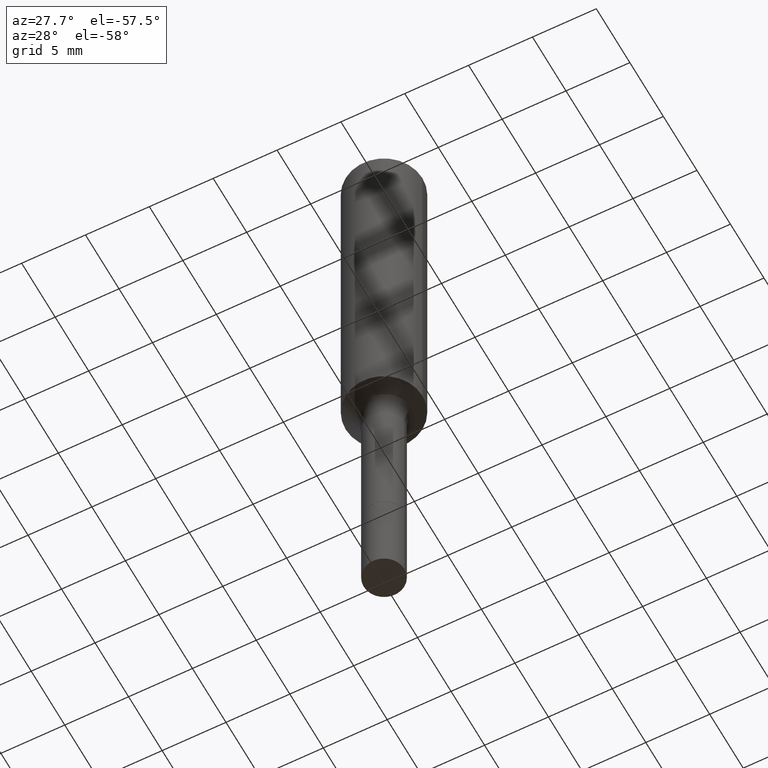
[diagram: clean part render]
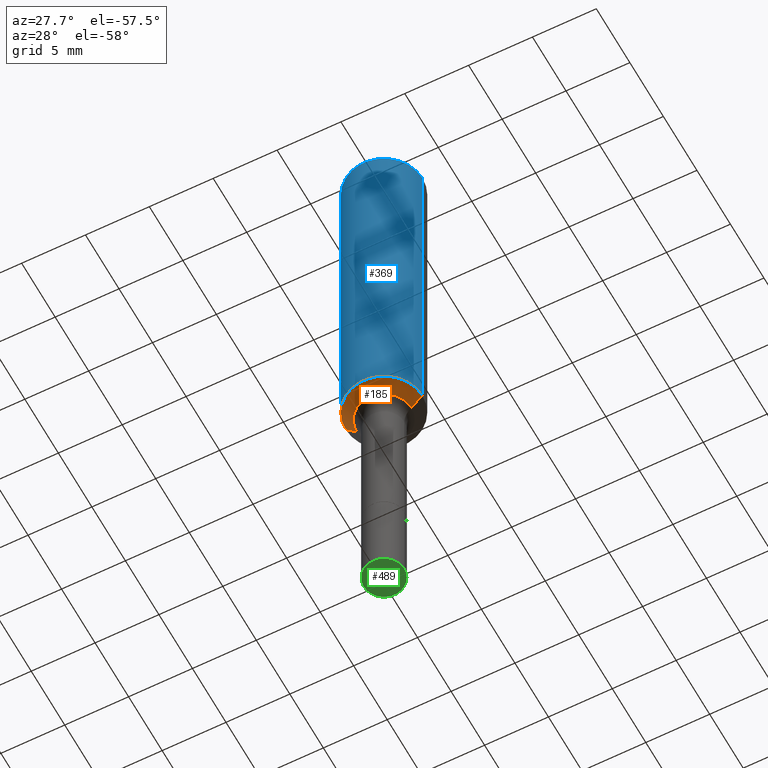
[diagram: same view with three faces highlighted in distinct colors, each labeled with its STEP entity id]
A machine part, auxiliary view with three faces highlighted in distinct colors.
Their STEP definitions:

[orange] entity #185 — the highlighted conical surface has half-angle 43 deg.
#15 = LINE ( 'NONE', #261, #397 ) ;
#31 = DIRECTION ( 'NONE',  ( 1.000000000000000000, -6.982962677686268288E-15, 0.000000000000000000 ) ) ;
#32 = VERTEX_POINT ( 'NONE', #206 ) ;
#51 = CIRCLE ( 'NONE', #109, 0.08399170387046661634 ) ;
#63 = AXIS2_PLACEMENT_3D ( 'NONE', #413, #299, #222 ) ;
#74 = CONICAL_SURFACE ( 'NONE', #327, 0.08399170387046661634, 0.7504915783575603072 ) ;
#103 = DIRECTION ( 'NONE',  ( 0.6819983600624974773, -2.208861293262464364E-15, 0.7313537016191714590 ) ) ;
#107 = VERTEX_POINT ( 'NONE', #363 ) ;
#109 = AXIS2_PLACEMENT_3D ( 'NONE', #352, #156, #31 ) ;
#153 = EDGE_CURVE ( 'NONE', #384, #429, #175, .T. ) ;
#154 = LINE ( 'NONE', #347, #286 ) ;
#156 = DIRECTION ( 'NONE',  ( -2.445468806185136597E-29, 3.491481338843145583E-15, 1.000000000000000000 ) ) ;
#162 = EDGE_LOOP ( 'NONE', ( #375, #348, #346, #350 ) ) ;
#175 = CIRCLE ( 'NONE', #63, 0.1181000000000001354 ) ;
#180 = FACE_OUTER_BOUND ( 'NONE', #162, .T. ) ;
#184 = DIRECTION ( 'NONE',  ( -2.445468806185136597E-29, 3.491481338843145583E-15, 1.000000000000000000 ) ) ;
#185 = ADVANCED_FACE ( 'NONE', ( #180 ), #74, .T. ) ;
#192 = CARTESIAN_POINT ( 'NONE',  ( 0.1181000000000001354, -4.767839343438834707E-15, -1.129363461673432267 ) ) ;
#206 = CARTESIAN_POINT ( 'NONE',  ( -0.08399170387046649144, -3.474061259782937489E-15, -1.165940131195000173 ) ) ;
#222 = DIRECTION ( 'NONE',  ( 1.000000000000000000, -6.982962677686269077E-15, 0.000000000000000000 ) ) ;
#244 = EDGE_CURVE ( 'NONE', #32, #384, #15, .T. ) ;
#261 = CARTESIAN_POINT ( 'NONE',  ( -0.08399170387046661634, -3.474061259782936306E-15, -1.165940131195000173 ) ) ;
#286 = VECTOR ( 'NONE', #103, 39.37007874015748143 ) ;
#299 = DIRECTION ( 'NONE',  ( -2.445468806185136597E-29, 3.491481338843145583E-15, 1.000000000000000000 ) ) ;
#327 = AXIS2_PLACEMENT_3D ( 'NONE', #411, #184, #334 ) ;
#334 = DIRECTION ( 'NONE',  ( 1.000000000000000000, -6.982962677686268288E-15, 0.000000000000000000 ) ) ;
#338 = DIRECTION ( 'NONE',  ( -0.6819983600624974773, 7.399397606724283421E-15, 0.7313537016191714590 ) ) ;
#346 = ORIENTED_EDGE ( 'NONE', *, *, #414, .T. ) ;
#347 = CARTESIAN_POINT ( 'NONE',  ( 0.08399170387046661634, -4.657369143638417737E-15, -1.165940131195000173 ) ) ;
#348 = ORIENTED_EDGE ( 'NONE', *, *, #351, .T. ) ;
#350 = ORIENTED_EDGE ( 'NONE', *, *, #153, .F. ) ;
#351 = EDGE_CURVE ( 'NONE', #32, #107, #51, .T. ) ;
#352 = CARTESIAN_POINT ( 'NONE',  ( 2.851270220716778580E-29, -4.070858210275671756E-15, -1.165940131195000173 ) ) ;
#363 = CARTESIAN_POINT ( 'NONE',  ( 0.08399170387046649144, -4.657369143638415371E-15, -1.165940131195000173 ) ) ;
#375 = ORIENTED_EDGE ( 'NONE', *, *, #244, .F. ) ;
#384 = VERTEX_POINT ( 'NONE', #500 ) ;
#397 = VECTOR ( 'NONE', #338, 39.37007874015748143 ) ;
#411 = CARTESIAN_POINT ( 'NONE',  ( 2.851270220716778580E-29, -4.070858210275671756E-15, -1.165940131195000173 ) ) ;
#413 = CARTESIAN_POINT ( 'NONE',  ( 2.761823116367642009E-29, -3.943151451204084867E-15, -1.129363461673432267 ) ) ;
#414 = EDGE_CURVE ( 'NONE', #107, #429, #154, .T. ) ;
#429 = VERTEX_POINT ( 'NONE', #192 ) ;
#500 = CARTESIAN_POINT ( 'NONE',  ( -0.1181000000000001354, -3.104000480271405881E-15, -1.129363461673432267 ) ) ;

[blue] entity #369 — the highlighted cylindrical surface (partial cylindrical patch) has radius 2.9997 mm, axis along (-0, 0, 1).
#3 = CIRCLE ( 'NONE', #434, 0.1180999999999999966 ) ;
#52 = LINE ( 'NONE', #217, #449 ) ;
#61 = DIRECTION ( 'NONE',  ( -2.445468806185136597E-29, 3.491481338843145583E-15, 1.000000000000000000 ) ) ;
#63 = AXIS2_PLACEMENT_3D ( 'NONE', #413, #299, #222 ) ;
#67 = FACE_OUTER_BOUND ( 'NONE', #280, .T. ) ;
#96 = CARTESIAN_POINT ( 'NONE',  ( 0.1180999999999999966, -9.071566814582237199E-16, -0.02362000000000014435 ) ) ;
#139 = VERTEX_POINT ( 'NONE', #96 ) ;
#153 = EDGE_CURVE ( 'NONE', #384, #429, #175, .T. ) ;
#155 = ORIENTED_EDGE ( 'NONE', *, *, #234, .T. ) ;
#175 = CIRCLE ( 'NONE', #63, 0.1181000000000001354 ) ;
#183 = AXIS2_PLACEMENT_3D ( 'NONE', #189, #61, #230 ) ;
#189 = CARTESIAN_POINT ( 'NONE',  ( 0.000000000000000000, 0.000000000000000000, 0.000000000000000000 ) ) ;
#192 = CARTESIAN_POINT ( 'NONE',  ( 0.1181000000000001354, -4.767839343438834707E-15, -1.129363461673432267 ) ) ;
#196 = CYLINDRICAL_SURFACE ( 'NONE', #183, 0.1181000000000000660 ) ;
#200 = ORIENTED_EDGE ( 'NONE', *, *, #153, .T. ) ;
#217 = CARTESIAN_POINT ( 'NONE',  ( 0.1181000000000000660, -8.246878922347485584E-16, 5.758764772215003944E-30 ) ) ;
#222 = DIRECTION ( 'NONE',  ( 1.000000000000000000, -6.982962677686269077E-15, 0.000000000000000000 ) ) ;
#223 = ORIENTED_EDGE ( 'NONE', *, *, #255, .F. ) ;
#230 = DIRECTION ( 'NONE',  ( 1.000000000000000000, -6.982962677686266711E-15, 4.876176775795936353E-29 ) ) ;
#234 = EDGE_CURVE ( 'NONE', #429, #139, #52, .T. ) ;
#255 = EDGE_CURVE ( 'NONE', #384, #515, #494, .T. ) ;
#279 = DIRECTION ( 'NONE',  ( -2.445468806185136597E-29, 3.491481338843145583E-15, 1.000000000000000000 ) ) ;
#280 = EDGE_LOOP ( 'NONE', ( #223, #200, #155, #452 ) ) ;
#288 = CARTESIAN_POINT ( 'NONE',  ( -0.1180999999999999966, -1.173659149281100979E-15, -0.02362000000000014435 ) ) ;
#299 = DIRECTION ( 'NONE',  ( -2.445468806185136597E-29, 3.491481338843145583E-15, 1.000000000000000000 ) ) ;
#369 = ADVANCED_FACE ( 'NONE', ( #67 ), #196, .T. ) ;
#376 = DIRECTION ( 'NONE',  ( -2.445468806185136877E-29, 3.491481338843145188E-15, 1.000000000000000000 ) ) ;
#377 = CARTESIAN_POINT ( 'NONE',  ( -0.1181000000000000660, 8.391509709326787887E-16, -5.809262341591047287E-30 ) ) ;
#384 = VERTEX_POINT ( 'NONE', #500 ) ;
#388 = CARTESIAN_POINT ( 'NONE',  ( 5.776197320209328408E-31, -8.246878922347560526E-17, -0.02362000000000014435 ) ) ;
#395 = VECTOR ( 'NONE', #488, 39.37007874015748143 ) ;
#413 = CARTESIAN_POINT ( 'NONE',  ( 2.761823116367642009E-29, -3.943151451204084867E-15, -1.129363461673432267 ) ) ;
#428 = DIRECTION ( 'NONE',  ( 1.000000000000000000, -6.982962677686266711E-15, 0.000000000000000000 ) ) ;
#429 = VERTEX_POINT ( 'NONE', #192 ) ;
#434 = AXIS2_PLACEMENT_3D ( 'NONE', #388, #279, #428 ) ;
#449 = VECTOR ( 'NONE', #376, 39.37007874015748143 ) ;
#452 = ORIENTED_EDGE ( 'NONE', *, *, #465, .F. ) ;
#465 = EDGE_CURVE ( 'NONE', #515, #139, #3, .T. ) ;
#488 = DIRECTION ( 'NONE',  ( -2.445468806185136877E-29, 3.491481338843145188E-15, 1.000000000000000000 ) ) ;
#494 = LINE ( 'NONE', #377, #395 ) ;
#500 = CARTESIAN_POINT ( 'NONE',  ( -0.1181000000000001354, -3.104000480271405881E-15, -1.129363461673432267 ) ) ;
#515 = VERTEX_POINT ( 'NONE', #288 ) ;

[green] entity #489 — the highlighted planar face has unit normal (0, -0, -1).
#18 = AXIS2_PLACEMENT_3D ( 'NONE', #362, #289, #367 ) ;
#40 = EDGE_CURVE ( 'NONE', #504, #225, #359, .T. ) ;
#41 = CARTESIAN_POINT ( 'NONE',  ( 0.06250000000000012490, -7.309416182868124954E-15, -1.968500000000000139 ) ) ;
#77 = FACE_OUTER_BOUND ( 'NONE', #381, .T. ) ;
#83 = PLANE ( 'NONE',  #121 ) ;
#89 = DIRECTION ( 'NONE',  ( -2.445468806185136597E-29, 3.491481338843145583E-15, 1.000000000000000000 ) ) ;
#121 = AXIS2_PLACEMENT_3D ( 'NONE', #472, #253, #281 ) ;
#134 = CARTESIAN_POINT ( 'NONE',  ( 4.813905344975441835E-29, -6.872981015512731707E-15, -1.968500000000000139 ) ) ;
#137 = EDGE_CURVE ( 'NONE', #225, #504, #294, .T. ) ;
#157 = ORIENTED_EDGE ( 'NONE', *, *, #40, .F. ) ;
#197 = ORIENTED_EDGE ( 'NONE', *, *, #137, .F. ) ;
#207 = AXIS2_PLACEMENT_3D ( 'NONE', #134, #89, #453 ) ;
#225 = VERTEX_POINT ( 'NONE', #297 ) ;
#253 = DIRECTION ( 'NONE',  ( 2.438088387897960049E-29, -3.491481338843145188E-15, -1.000000000000000000 ) ) ;
#281 = DIRECTION ( 'NONE',  ( -1.000000000000000000, 6.982962677686265922E-15, -4.876176775795935793E-29 ) ) ;
#289 = DIRECTION ( 'NONE',  ( -2.445468806185136597E-29, 3.491481338843145583E-15, 1.000000000000000000 ) ) ;
#294 = CIRCLE ( 'NONE', #207, 0.06250000000000012490 ) ;
#297 = CARTESIAN_POINT ( 'NONE',  ( -0.06250000000000012490, -5.924372752199833260E-15, -1.968500000000000139 ) ) ;
#359 = CIRCLE ( 'NONE', #18, 0.06250000000000012490 ) ;
#362 = CARTESIAN_POINT ( 'NONE',  ( 4.813905344975441835E-29, -6.872981015512731707E-15, -1.968500000000000139 ) ) ;
#367 = DIRECTION ( 'NONE',  ( 1.000000000000000000, -6.982962677686264344E-15, 0.000000000000000000 ) ) ;
#381 = EDGE_LOOP ( 'NONE', ( #157, #197 ) ) ;
#453 = DIRECTION ( 'NONE',  ( 1.000000000000000000, -6.982962677686264344E-15, 0.000000000000000000 ) ) ;
#472 = CARTESIAN_POINT ( 'NONE',  ( 4.813905344975441835E-29, -6.872981015512731707E-15, -1.968500000000000139 ) ) ;
#489 = ADVANCED_FACE ( 'NONE', ( #77 ), #83, .T. ) ;
#504 = VERTEX_POINT ( 'NONE', #41 ) ;